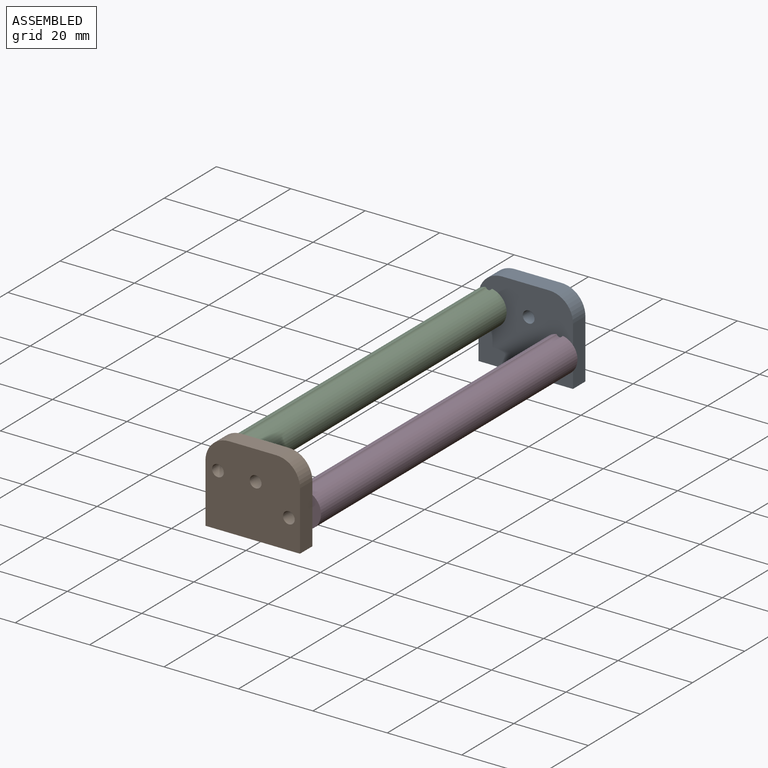
[diagram: assembled view]
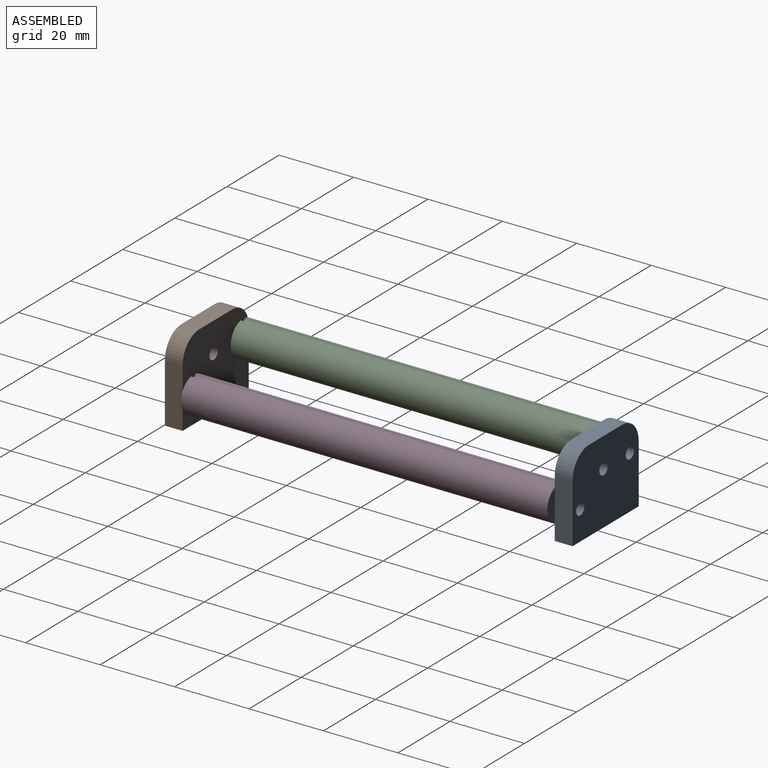
[diagram: assembled view, second angle]
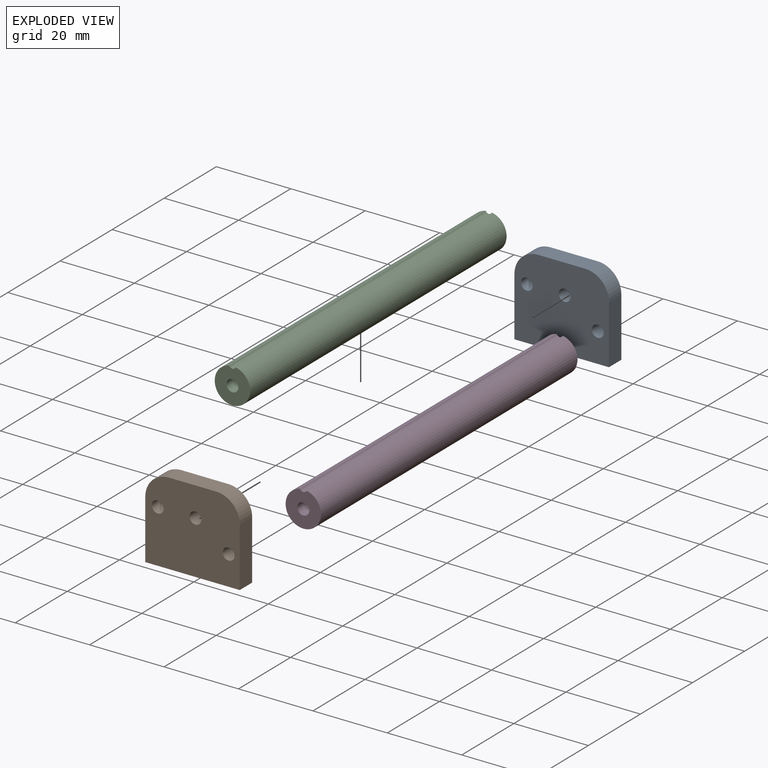
[diagram: exploded view]
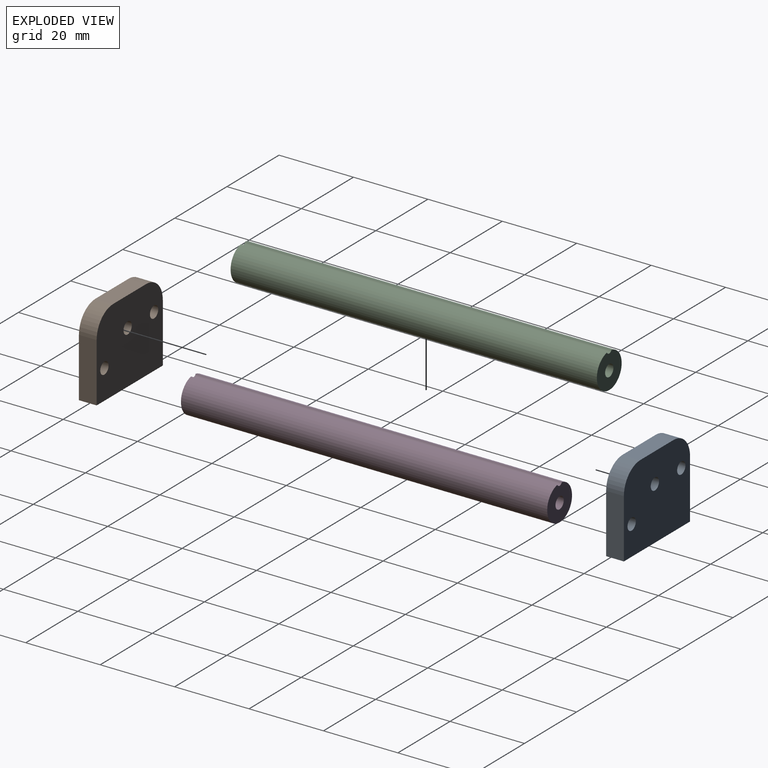
[diagram: exploded view, second angle]
ASSEMBLY  parts=4 mates=3
PART A: 11 faces, bbox 25.4x4.8x22.2 mm
  f0: cylinder r=6.35mm len=6.35mm, axis (0,1,0), area 47.5mm2, adj f1,f8,f9,f10
  f1: plane 15.88x4.76mm, normal (-1,0,0), area 75.6mm2, adj f0,f2,f9,f10
  f2: plane 25.4x4.76mm, normal (0,0,-1), area 121mm2, adj f1,f3,f9,f10
  f3: plane 15.88x4.76mm, normal (1,0,0), area 75.6mm2, adj f2,f4,f9,f10
  f4: cylinder r=6.35mm len=6.35mm, axis (0,1,0), area 47.5mm2, adj f3,f8,f9,f10
  f5: cylinder r=1.59mm len=4.76mm, axis (0,1,0), area 47.5mm2, adj f9,f10
  f6: cylinder r=1.59mm len=4.76mm, axis (0,1,0), area 47.5mm2, adj f9,f10
  f7: cylinder r=1.59mm len=4.76mm, axis (0,1,0), area 47.5mm2, adj f9,f10
  f8: plane 12.7x4.76mm, normal (0,0,1), area 60.5mm2, adj f0,f4,f9,f10
  f9: plane 25.4x22.23mm, normal (0,-1,0), area 523.5mm2, adj f0,f1,f2,f3,f4,f5,f6,f7
  f10: plane 25.4x22.23mm, normal (0,1,0), area 523.5mm2, adj f0,f1,f2,f3,f4,f5,f6,f7
PART B: same geometry as A
PART C: 5 faces, bbox 9.5x98.4x9.4 mm
  f0: cylinder r=1.59mm len=98.43mm, axis (0,1,0), area 981.7mm2, adj f2,f3
  f1: cylinder r=4.76mm len=98.43mm, axis (0,1,0), area 2773.8mm2, adj f2,f3,f4
  f2: plane 9.53x9.45mm, normal (0,-1,0), area 62.6mm2, adj f0,f1,f4
  f3: plane 9.53x9.45mm, normal (0,1,0), area 62.6mm2, adj f0,f1,f4
  f4: cylinder r=0.95mm len=98.43mm, axis (0,-1,0), area 213.9mm2, adj f1,f2,f3
PART D: same geometry as C
PLACE A t=(57.62,71.91,5.16)mm
PLACE B t=(57.62,-32.87,5.16)mm
PLACE C t=(-107.01,66.35,-11)mm
PLACE D t=(-87.96,66.35,-17.35)mm
MATE revolute D.f0 <-> A.f7  axis (0,1,0) through (-70.13,66.35,13.1)mm
MATE revolute A.f5 <-> C.f0  axis (0,-1,0) through (-89.18,67.14,19.45)mm
MATE revolute C.f0 <-> B.f5  axis (0,-1,0) through (-89.18,-32.07,19.45)mm
